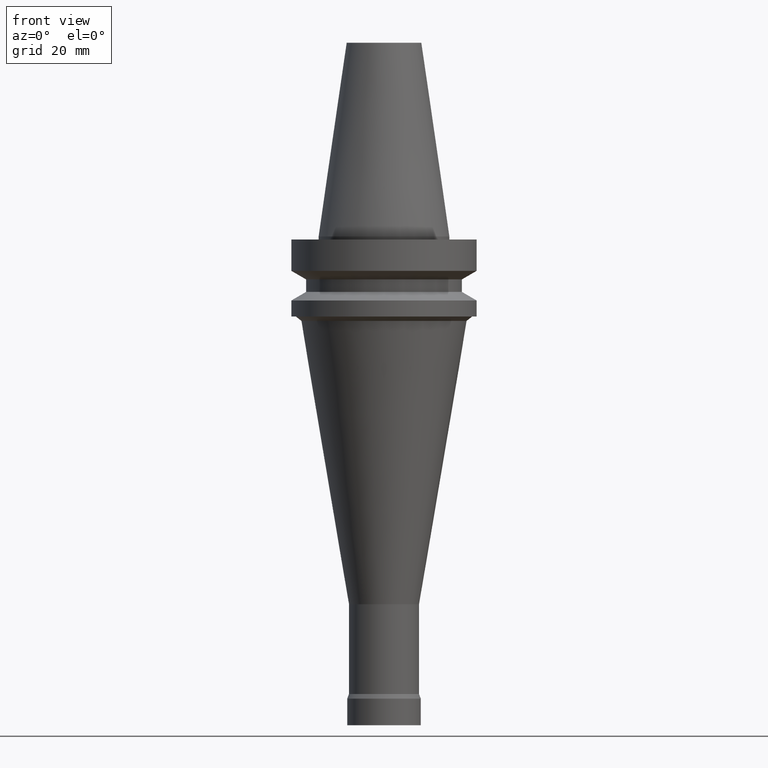
[diagram: clean part render]
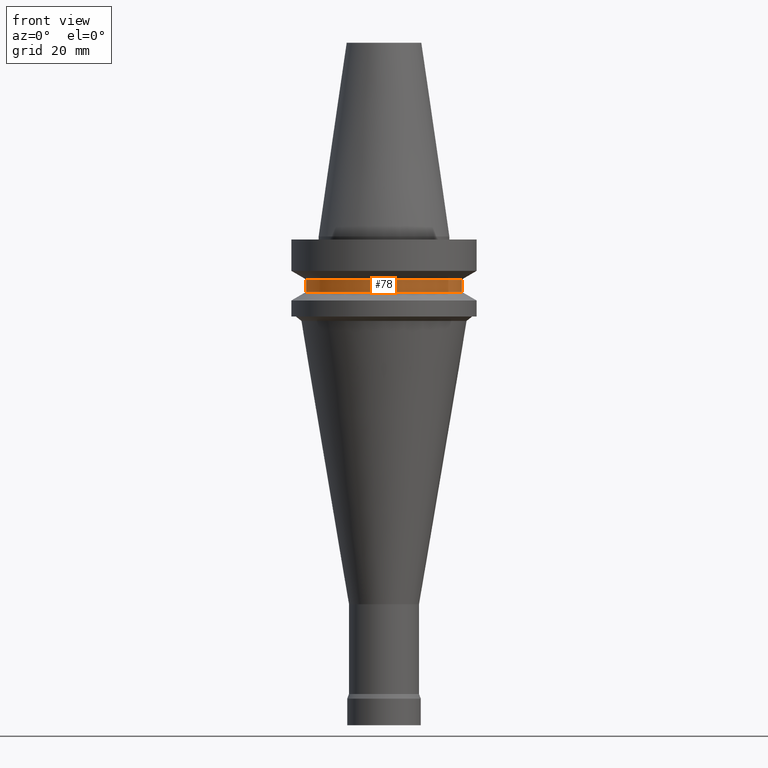
[diagram: same view with one face highlighted and labeled with its STEP entity id]
A machine part, front view. The second image highlights one B-rep face of the part: STEP entity #78.
In plain terms, the highlighted cylindrical surface (bore or boss wall) has radius 26.5 mm, axis along (-0, -0, 1).
Its self-contained STEP definition (entity closure, byte-faithful):
#78=ADVANCED_FACE('',(#101,#102),#103,.T.);
#101=FACE_BOUND('',#147,.T.);
#102=FACE_BOUND('',#148,.T.);
#103=CYLINDRICAL_SURFACE('',#149,26.5);
#147=EDGE_LOOP('',(#199));
#148=EDGE_LOOP('',(#200));
#149=AXIS2_PLACEMENT_3D('',#201,#202,#203);
#199=ORIENTED_EDGE('',*,*,#266,.F.);
#200=ORIENTED_EDGE('',*,*,#265,.T.);
#201=CARTESIAN_POINT('',(1.0164568432923E-015,2.03291368658461E-015,-16.6));
#202=DIRECTION('',(-6.12323399573677E-017,-1.22464679914735E-016,1.0));
#203=DIRECTION('',(-1.23259516440783E-032,1.0,1.22464679914735E-016));
#265=EDGE_CURVE('',#283,#283,#284,.T.);
#266=EDGE_CURVE('',#285,#285,#286,.T.);
#283=VERTEX_POINT('',#313);
#284=CIRCLE('',#314,26.5);
#285=VERTEX_POINT('',#315);
#286=CIRCLE('',#316,26.5);
#313=CARTESIAN_POINT('',(8.87057683541055E-016,26.5,-14.48675135));
#314=AXIS2_PLACEMENT_3D('',#346,#347,#348);
#315=CARTESIAN_POINT('',(1.14585600304355E-015,26.5,-18.71324865));
#316=AXIS2_PLACEMENT_3D('',#349,#350,#351);
#346=CARTESIAN_POINT('',(8.87057683541055E-016,1.77411536708211E-015,-14.48675135));
#347=DIRECTION('',(6.12323399573677E-017,1.22464679914735E-016,-1.0));
#348=DIRECTION('',(-1.23259516440783E-032,1.0,1.22464679914735E-016));
#349=CARTESIAN_POINT('',(1.14585600304355E-015,2.2917120060871E-015,-18.71324865));
#350=DIRECTION('',(6.12323399573677E-017,1.22464679914735E-016,-1.0));
#351=DIRECTION('',(-1.23259516440783E-032,1.0,1.22464679914735E-016));